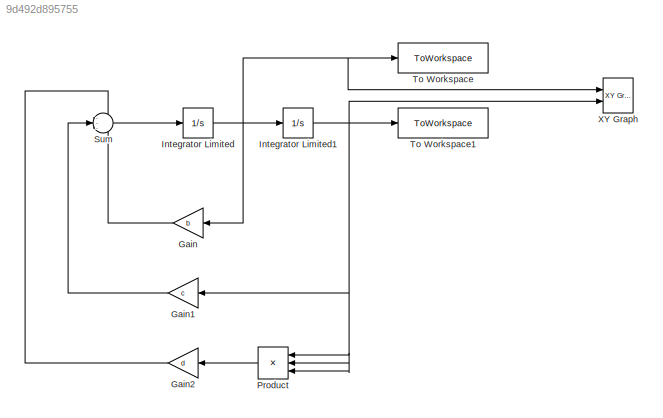
MODEL slx_9d492d895755
KIND model
CONFIG AbsTol = auto
CONFIG EnableMultiTasking = off
CONFIG FixedStep = auto
CONFIG MaxStep = auto
CONFIG MinStep = auto
CONFIG RelTol = 1e-3
CONFIG SampleTimeConstraint = Unconstrained
CONFIG SolverName = VariableStepAuto
CONFIG StartTime = 0.0
CONFIG StopTime = 10
BLOCK [Gain] Gain
  Gain = b
BLOCK [Gain] Gain1
  Gain = c
BLOCK [Gain] Gain2
  Gain = d
BLOCK [Integrator] Integrator Limited
  InitialCondition = x0(1)
  LimitOutput = on
  LowerSaturationLimit = -2
  Ports = [1, 1]
  UpperSaturationLimit = 2
BLOCK [Integrator] Integrator Limited1
  InitialCondition = x0(2)
  LimitOutput = on
  LowerSaturationLimit = -2
  Ports = [1, 1]
  UpperSaturationLimit = 2
BLOCK [Product] Product
  Inputs = 3
  Ports = [3, 1]
BLOCK [Sum] Sum
  Inputs = ---
  Ports = [3, 1]
BLOCK [ToWorkspace] To Workspace
  FixptAsFi = on
  MaxDataPoints = inf
  Ports = [1]
  SampleTime = -1
  Save2DSignal = 2-D array (concatenate along first dimension)
  VariableName = x2
BLOCK [ToWorkspace] To Workspace1
  FixptAsFi = on
  MaxDataPoints = inf
  Ports = [1]
  SampleTime = -1
  Save2DSignal = 2-D array (concatenate along first dimension)
  VariableName = x1
BLOCK [Reference] XY Graph  REF=simulink/Sinks/XY Graph
  Ports = [2]
  SourceBlock = simulink/Sinks/XY Graph
  SourceProductBaseCode = SL
  SourceType = XY scope.
LINE Gain1:1 -> Sum:2
LINE Gain2:1 -> Sum:1
LINE Gain:1 -> Sum:3
NET Integrator Limited1:1 -> Gain1:1, Product:1, Product:2, Product:3, To Workspace1:1, XY Graph:2
NET Integrator Limited:1 -> Gain:1, Integrator Limited1:1, To Workspace:1, XY Graph:1
LINE Product:1 -> Gain2:1
LINE Sum:1 -> Integrator Limited:1
note: NET lines group one-source signal fan-out (src -> all destinations, sorted); 1:1 wires keep LINE
